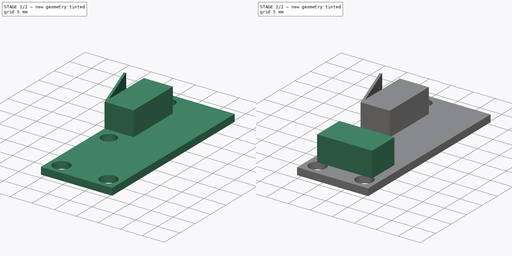
[diagram: build sequence overview — one tinted view per stage of 2, left to right]
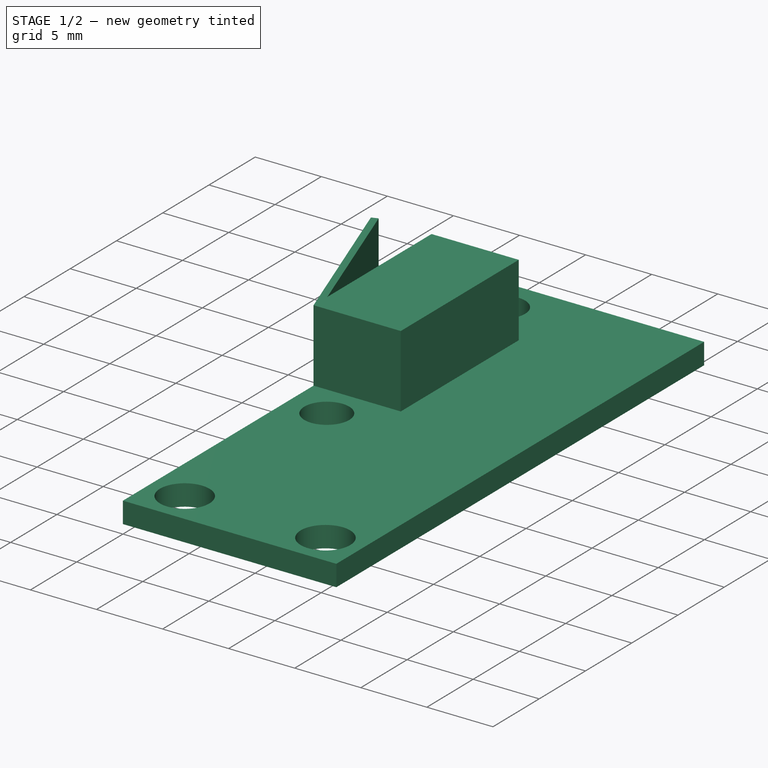
[diagram: stage 1 of 2 — iso view after this stage's code; geometry added in this stage tinted green]
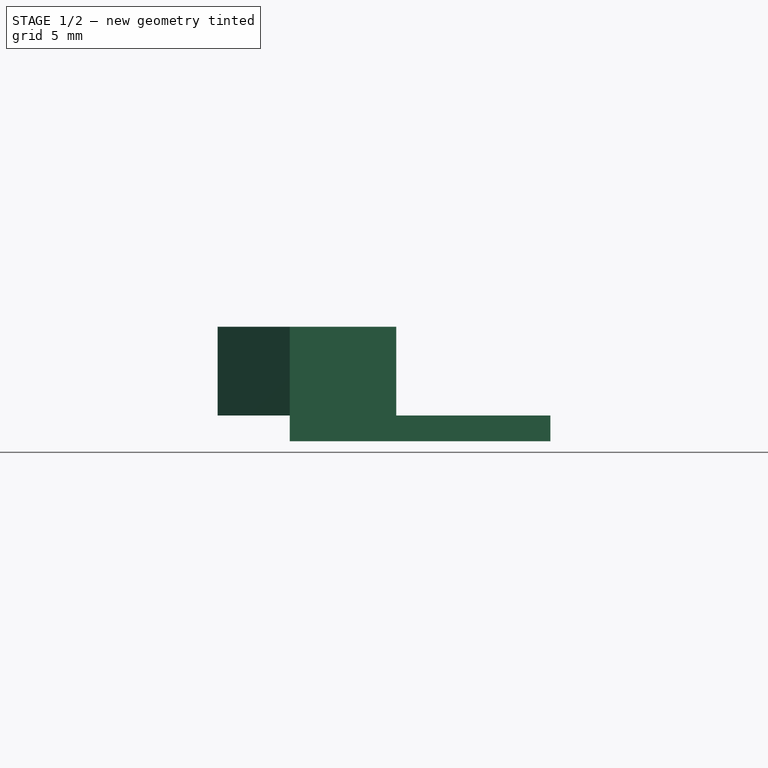
[diagram: stage 1 of 2 — front view after this stage's code; geometry added in this stage tinted green]
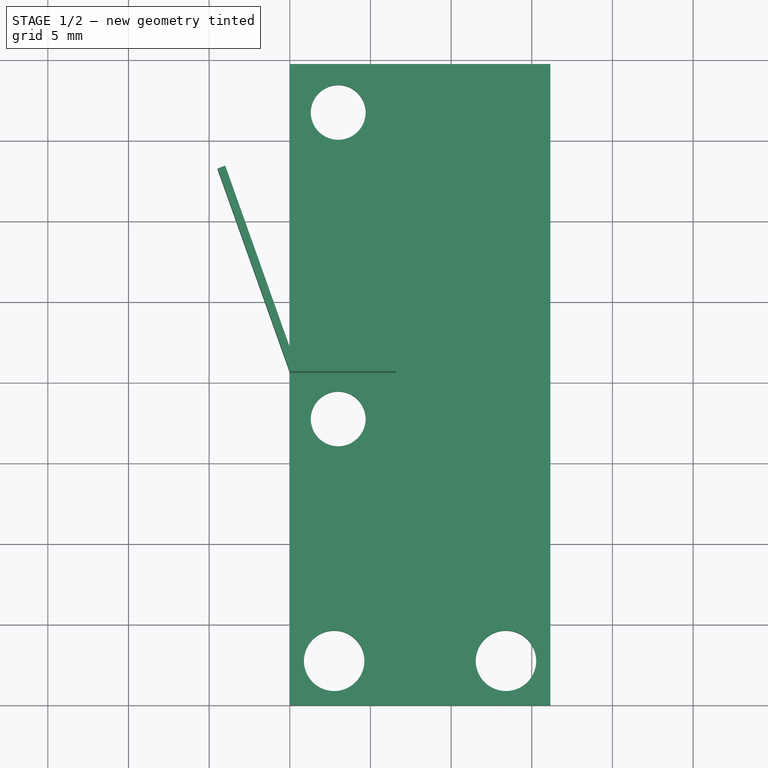
[diagram: stage 1 of 2 — top view after this stage's code; geometry added in this stage tinted green]
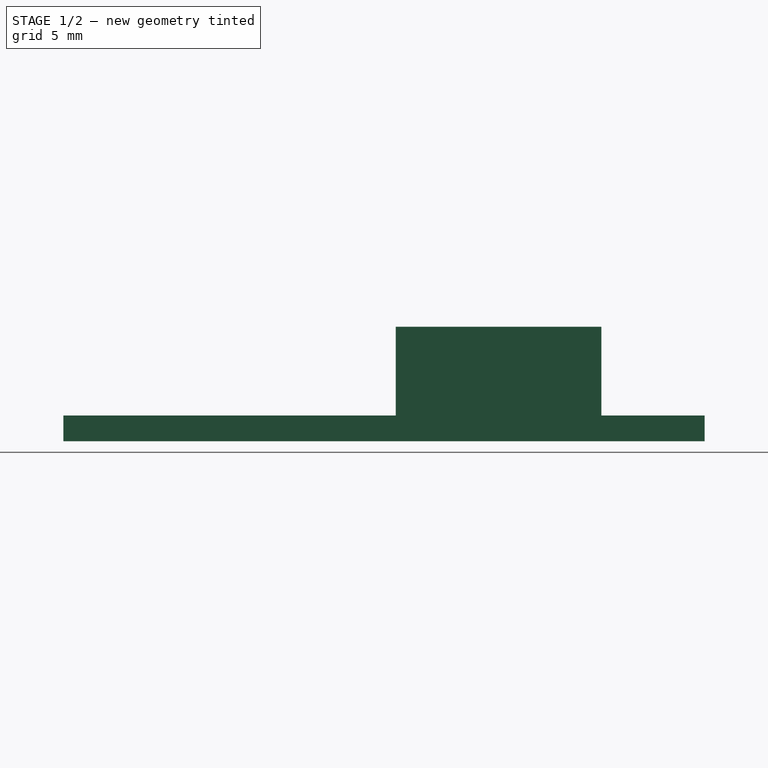
[diagram: stage 1 of 2 — right view after this stage's code; geometry added in this stage tinted green]
FCSTD DOCUMENT  (FreeCAD 0.19R22960 (Git))
Label: PCB-0004-00_limit-switch
License: All rights reserved
LicenseURL: http://en.wikipedia.org/wiki/All_rights_reserved
objects: Sketcher::SketchObject×3, PartDesign::Pad×3, PartDesign::Body×3, PartDesign::ShapeBinder×1
note: 13 computed .brp shape members not serialized (recipe doc carries the construction recipe); baked Part::Feature solids carry a one-line shape summary decoded from their .brp

FEATURE [Sketcher::SketchObject] Sketch
  MapMode = 5
  Support = -> [XY_Plane]
  sketch-geometry (8):
    g0: LineSegment StartX=0 StartY=0 StartZ=0 EndX=16.15 EndY=0 EndZ=0
    g1: LineSegment StartX=16.15 StartY=0 StartZ=0 EndX=16.15 EndY=39.75 EndZ=0
    g2: LineSegment StartX=16.15 StartY=39.75 StartZ=0 EndX=0 EndY=39.75 EndZ=0
    g3: LineSegment StartX=0 StartY=39.75 StartZ=0 EndX=0 EndY=0 EndZ=0
    g4: Circle CenterX=2.75 CenterY=2.75 CenterZ=0 NormalX=0 NormalY=0 NormalZ=1 AngleXU=0 Radius=1.875
    g5: Circle CenterX=13.4 CenterY=2.75 CenterZ=0 NormalX=0 NormalY=0 NormalZ=1 AngleXU=0 Radius=1.875
    g6: Circle CenterX=3 CenterY=36.75 CenterZ=0 NormalX=0 NormalY=0 NormalZ=1 AngleXU=0 Radius=1.7
    g7: Circle CenterX=3 CenterY=17.75 CenterZ=0 NormalX=0 NormalY=0 NormalZ=1 AngleXU=0 Radius=1.7
  constraints (23):
    c: Coincident(g0,g1)
    c: Coincident(g1,g2)
    c: Coincident(g2,g3)
    c: Coincident(g3,g0)
    c: Horizontal(g0)
    c: Horizontal(g2)
    c: Vertical(g1)
    c: Vertical(g3)
    c: Coincident(g0,g-1)
    c: DistanceX(g2,g1) = 16.15
    c: DistanceY(g0,g1) = 39.75
    c: Diameter(g6) = 3.4
    c: Diameter(g7) = 3.4
    c: Diameter(g5) = 3.75
    c: Diameter(g4) = 3.75
    c: DistanceY(g0,g5) = 2.75
    c: DistanceX(g5,g0) = 2.75
    c: DistanceX(g0,g4) = 2.75
    c: DistanceY(g0,g4) = 2.75
    c: DistanceY(g6,g2) = 3
    c: DistanceX(g2,g6) = 3
    c: DistanceX(g2,g7) = 3
    c: DistanceY(g7,g6) = 19
FEATURE [PartDesign::Pad] Pad
  Direction = (1,1,1)
  Length = 1.6
  Length2 = 100
  Profile = -> Sketch
  Type = 0
FEATURE [PartDesign::Body] Body001
  Group = -> [CopyPad,Sketch001,Pad001]
  Origin = -> Origin001
  Tip = -> Pad001
FEATURE [Sketcher::SketchObject] Sketch002
  MapMode = 5
  Placement = pos=(0,0,1.6) rot=(0,0,1;0rad)
  Support = -> [Pad]
  sketch-geometry (7):
    g0: LineSegment StartX=0 StartY=20.6 StartZ=0 EndX=6.6 EndY=20.6 EndZ=0
    g1: LineSegment StartX=6.6 StartY=20.6 StartZ=0 EndX=6.6 EndY=33.35 EndZ=0
    g2: LineSegment StartX=6.6 StartY=33.35 StartZ=0 EndX=0 EndY=33.35 EndZ=0
    g3: LineSegment StartX=0 StartY=33.35 StartZ=0 EndX=0 EndY=22.0933 EndZ=0
    g4: LineSegment StartX=0 StartY=20.6 StartZ=0 EndX=-4.47114 EndY=33.1826 EndZ=0
    g5: LineSegment StartX=-4.47114 StartY=33.1826 StartZ=0 EndX=-4 EndY=33.35 EndZ=0
    g6: LineSegment StartX=-4 StartY=33.35 StartZ=0 EndX=0 EndY=22.0933 EndZ=0
  constraints (21):
    c: Coincident(g0,g1)
    c: Coincident(g1,g2)
    c: Coincident(g2,g3)
    c: Horizontal(g0)
    c: Horizontal(g2)
    c: Vertical(g1)
    c: Vertical(g3)
    c: PointOnObject(g0,g-2)
    c: DistanceY(g0,g1) = 12.75
    c: DistanceX(g2,g2) = 6.6
    c: DistanceY(g-1,g0) = 20.6
    c: Coincident(g0,g4)
    c: Coincident(g4,g5)
    c: Coincident(g5,g6)
    c: Parallel(g6,g4)
    c: Distance(g5) = 0.5
    c: Perpendicular(g4,g5)
    c: DistanceX(g5,g2) = 4
    c: PointOnObject(g5,g2)
    c: Coincident(g3,g6)
    c: PointOnObject(g0,g3)
FEATURE [PartDesign::Pad] Pad002
  Direction = (1,1,1)
  Length = 5.5
  Length2 = 100
  Profile = -> Sketch002
  Type = 0
FEATURE [PartDesign::Body] Body002
  Group = -> [Sketch002,Pad002]
  Origin = -> Origin002
  Tip = -> Pad002
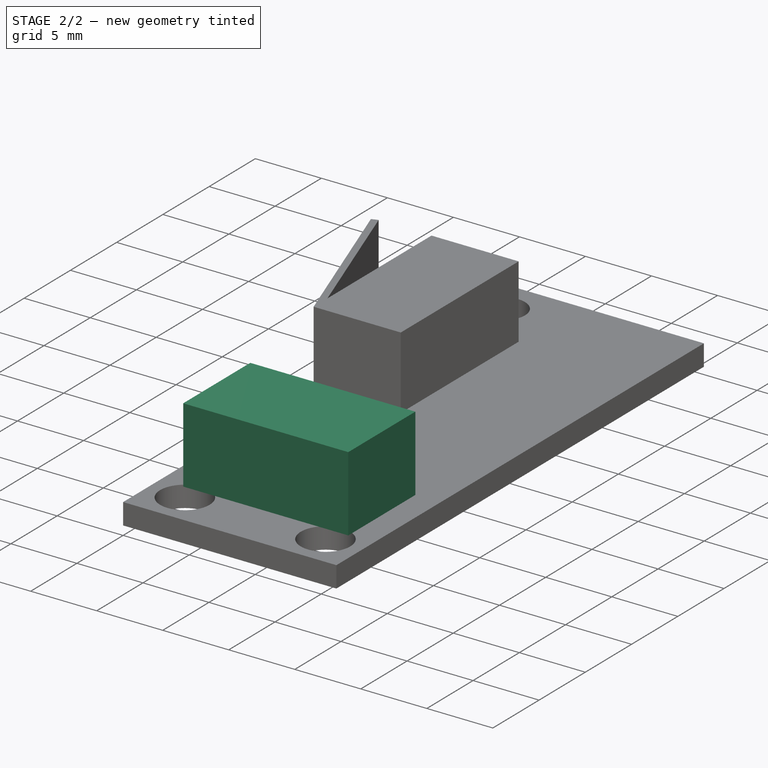
[diagram: stage 2 of 2 — iso view after this stage's code; geometry added in this stage tinted green]
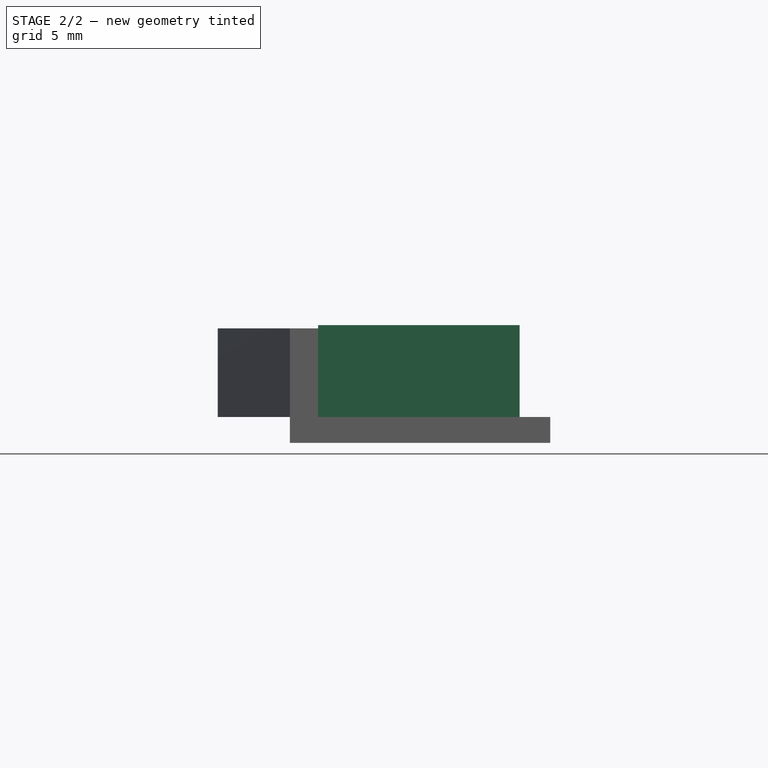
[diagram: stage 2 of 2 — front view after this stage's code; geometry added in this stage tinted green]
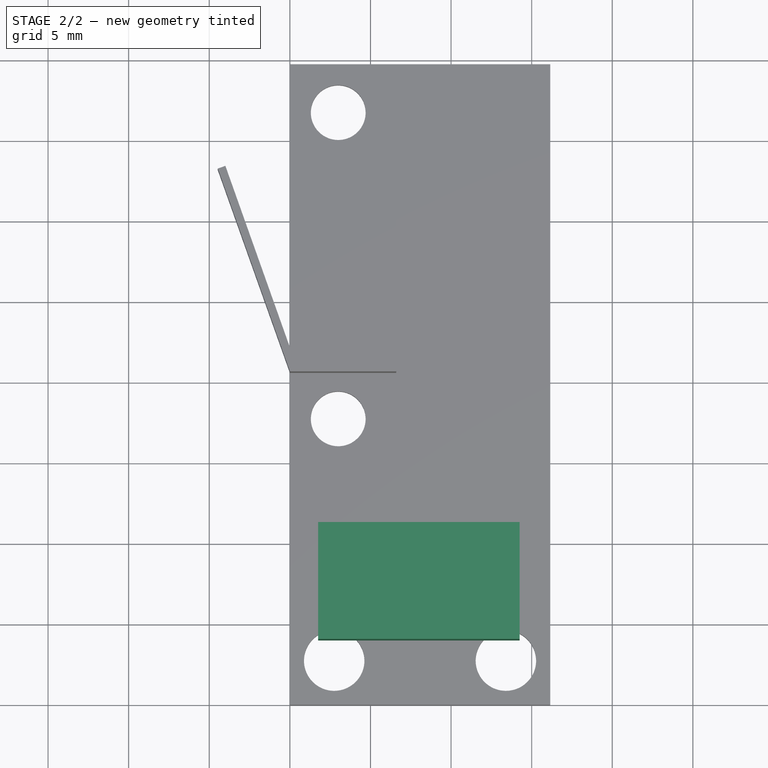
[diagram: stage 2 of 2 — top view after this stage's code; geometry added in this stage tinted green]
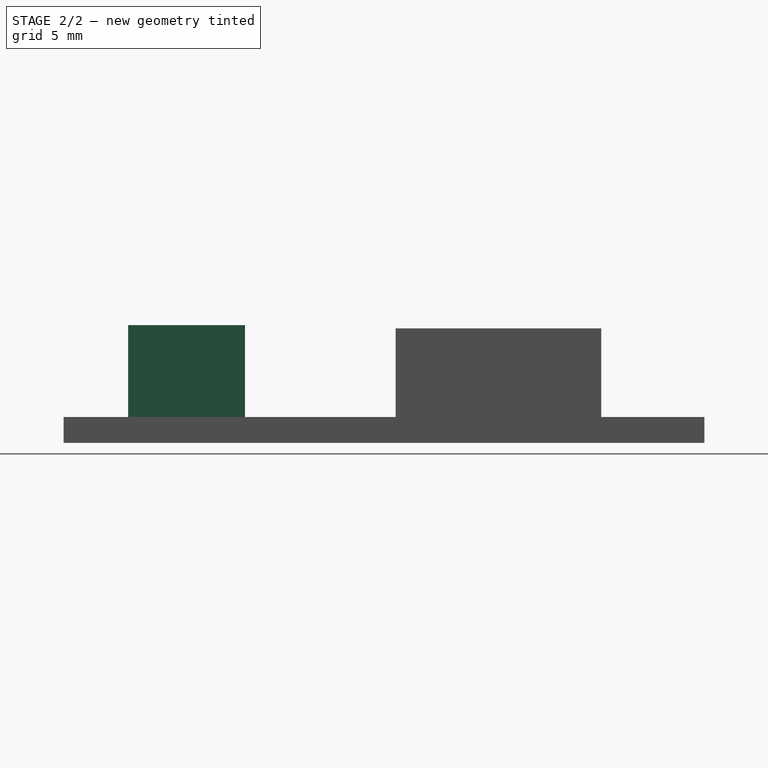
[diagram: stage 2 of 2 — right view after this stage's code; geometry added in this stage tinted green]
FEATURE [PartDesign::Body] Body
  Group = -> [Sketch,Pad]
  Origin = -> Origin
  Tip = -> Pad
FEATURE [PartDesign::ShapeBinder] CopyPad
  Placement = pos=(0,0,1.6) rot=(0,0,1;0rad)
  TraceSupport = false
FEATURE [Sketcher::SketchObject] Sketch001
  MapMode = 5
  Placement = pos=(0,0,1.6) rot=(0,0,1;0rad)
  Support = -> [CopyPad]
  sketch-geometry (4):
    g0: LineSegment StartX=1.75 StartY=4 StartZ=0 EndX=14.25 EndY=4 EndZ=0
    g1: LineSegment StartX=14.25 StartY=4 StartZ=0 EndX=14.25 EndY=11.25 EndZ=0
    g2: LineSegment StartX=14.25 StartY=11.25 StartZ=0 EndX=1.75 EndY=11.25 EndZ=0
    g3: LineSegment StartX=1.75 StartY=11.25 StartZ=0 EndX=1.75 EndY=4 EndZ=0
  constraints (12):
    c: Coincident(g0,g1)
    c: Coincident(g1,g2)
    c: Coincident(g2,g3)
    c: Coincident(g3,g0)
    c: Horizontal(g0)
    c: Horizontal(g2)
    c: Vertical(g1)
    c: Vertical(g3)
    c: DistanceX(g0,g0) = 12.5
    c: DistanceY(g0,g2) = 7.25
    c: DistanceY(g-1,g0) = 4
    c: DistanceX(g-1,g0) = 1.75
FEATURE [PartDesign::Pad] Pad001
  Direction = (1,1,1)
  Length = 5.7
  Length2 = 100
  Placement = pos=(0,0,1.6) rot=(0,0,1;0rad)
  Profile = -> Sketch001
  Type = 0
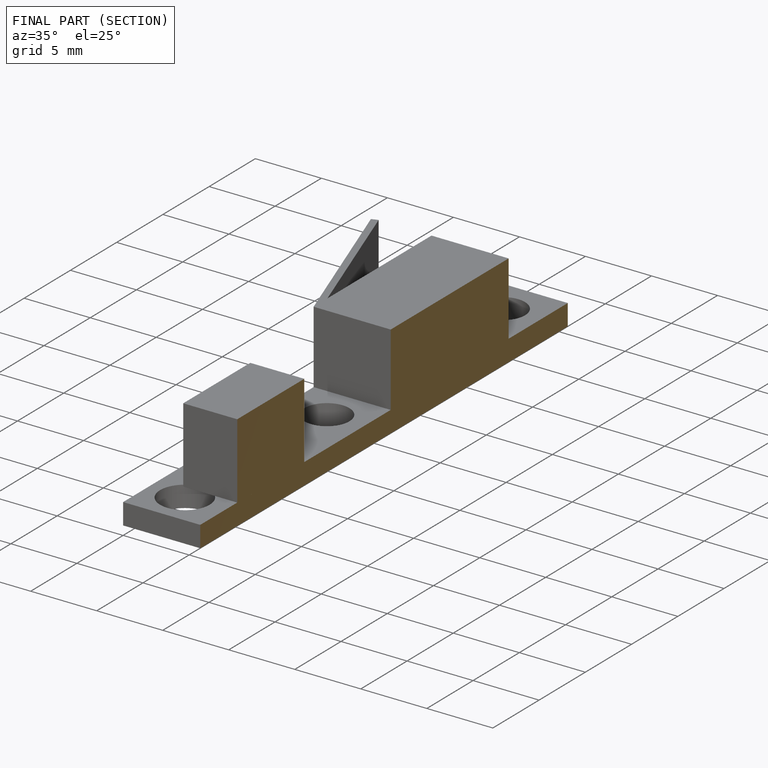
[diagram: finished part — half-section view (interior)]
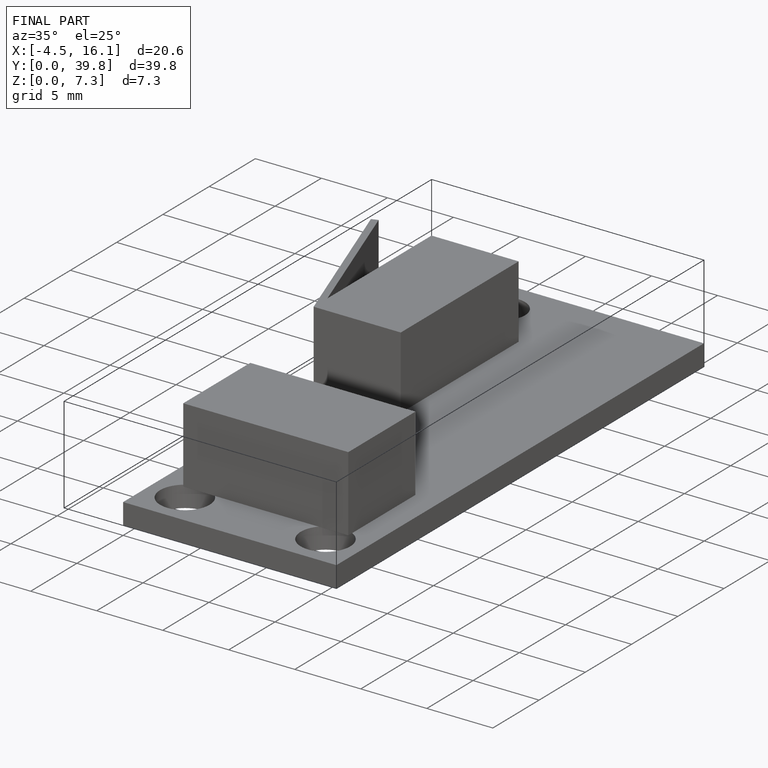
[diagram: finished part — iso view with bounding-box wireframe]
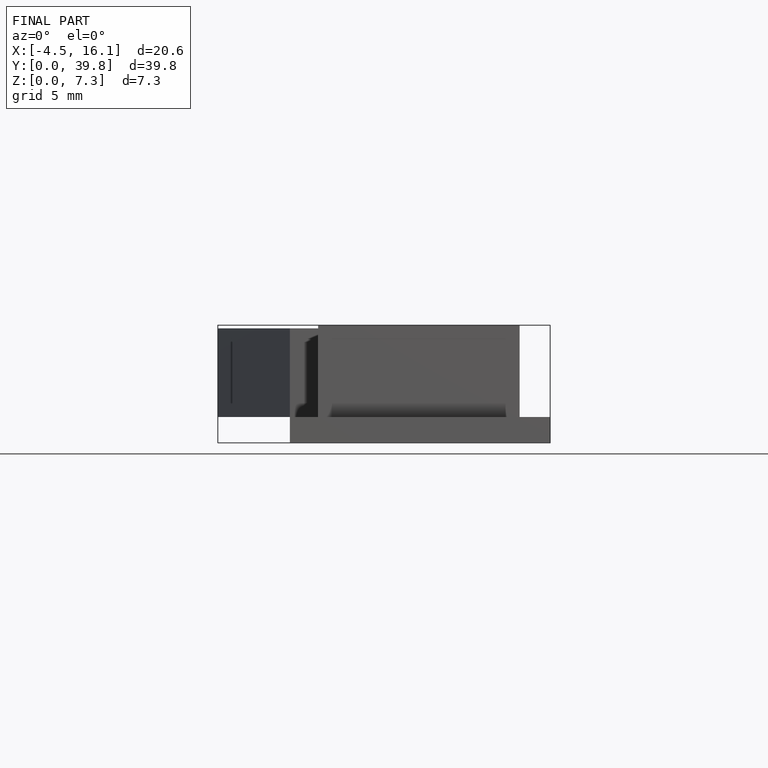
[diagram: finished part — front view with bounding-box wireframe]
